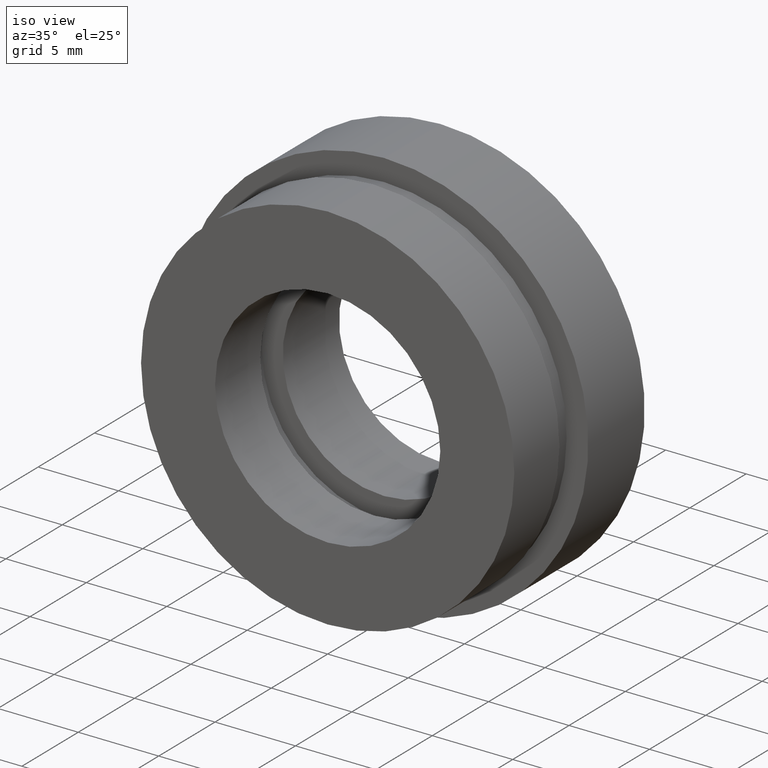
[diagram: clean part render]
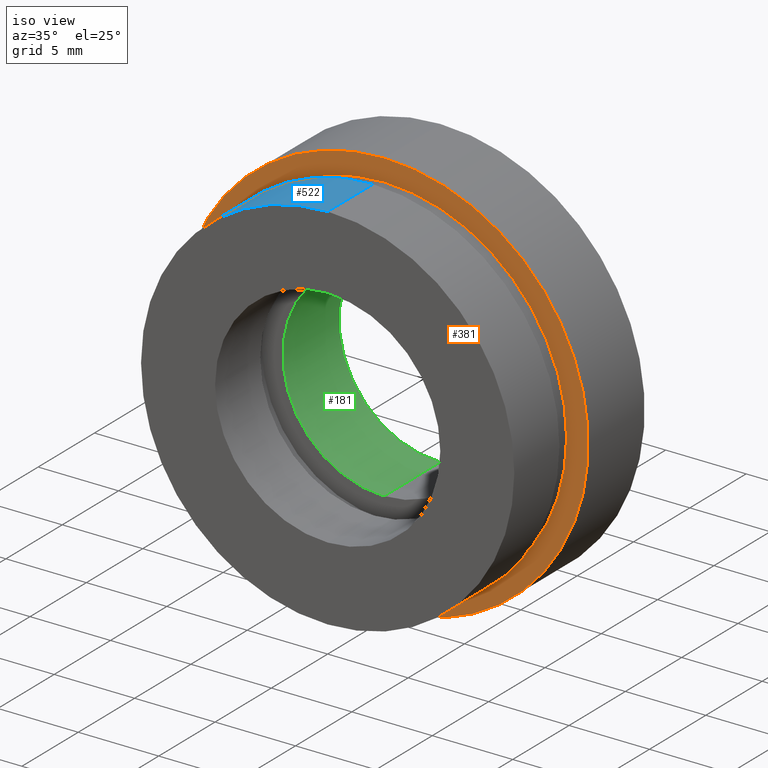
[diagram: same view with three faces highlighted in distinct colors, each labeled with its STEP entity id]
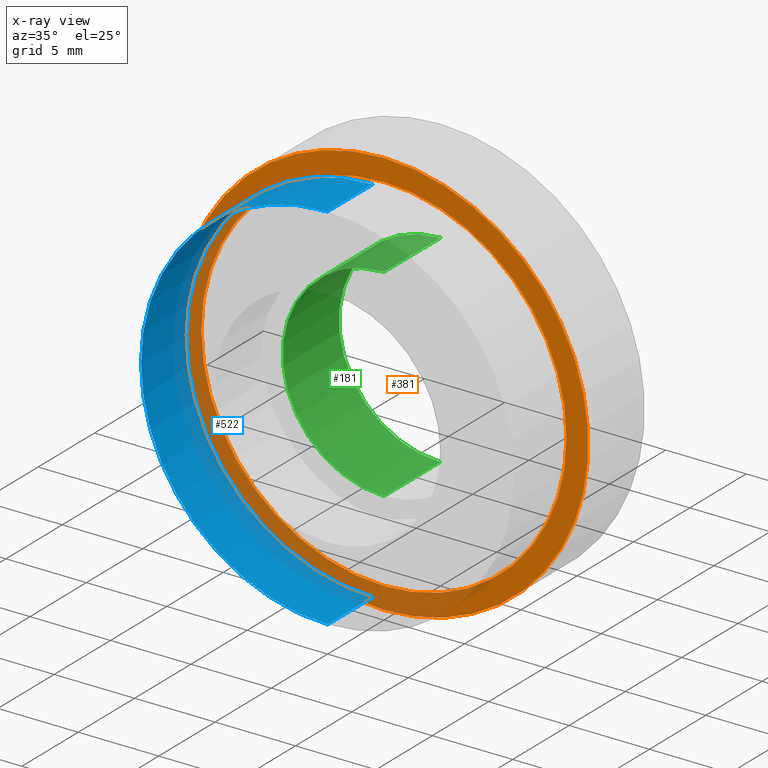
[diagram: x-ray of the same camera — body ghosted, the three highlighted faces saturated]
A machine part, iso view with three faces highlighted in distinct colors.
The next image is the same camera in x-ray (body ghosted, the three faces saturated) — at least one of them is partly hidden behind the body in this view.
Their STEP definitions:

[orange] entity #381 — the highlighted planar face has unit normal (-0, 1, 0).
#21 = CIRCLE ( 'NONE', #583, 11.35000000000000000 ) ;
#22 = CARTESIAN_POINT ( 'NONE',  ( 0.0000000000000000000, 5.000000000000000900, 0.0000000000000000000 ) ) ;
#70 = DIRECTION ( 'NONE',  ( 0.0000000000000000000, 0.0000000000000000000, 1.000000000000000000 ) ) ;
#108 = AXIS2_PLACEMENT_3D ( 'NONE', #363, #369, #380 ) ;
#109 = DIRECTION ( 'NONE',  ( -0.0000000000000000000, 1.000000000000000000, 0.0000000000000000000 ) ) ;
#120 = AXIS2_PLACEMENT_3D ( 'NONE', #22, #624, #166 ) ;
#124 = AXIS2_PLACEMENT_3D ( 'NONE', #150, #152, #153 ) ;
#147 = EDGE_LOOP ( 'NONE', ( #351, #525 ) ) ;
#150 = CARTESIAN_POINT ( 'NONE',  ( 0.0000000000000000000, 5.000000000000000900, 0.0000000000000000000 ) ) ;
#152 = DIRECTION ( 'NONE',  ( -0.0000000000000000000, 1.000000000000000000, -0.0000000000000000000 ) ) ;
#153 = DIRECTION ( 'NONE',  ( 0.0000000000000000000, 0.0000000000000000000, 1.000000000000000000 ) ) ;
#166 = DIRECTION ( 'NONE',  ( 0.0000000000000000000, 0.0000000000000000000, 1.000000000000000000 ) ) ;
#176 = AXIS2_PLACEMENT_3D ( 'NONE', #204, #109, #70 ) ;
#177 = VERTEX_POINT ( 'NONE', #620 ) ;
#189 = PLANE ( 'NONE',  #176 ) ;
#193 = CIRCLE ( 'NONE', #120, 12.70000000000000100 ) ;
#194 = CIRCLE ( 'NONE', #124, 12.70000000000000100 ) ;
#204 = CARTESIAN_POINT ( 'NONE',  ( 12.70000000000000100, 5.000000000000000900, 0.0000000000000000000 ) ) ;
#229 = DIRECTION ( 'NONE',  ( 0.0000000000000000000, 0.0000000000000000000, 1.000000000000000000 ) ) ;
#233 = CARTESIAN_POINT ( 'NONE',  ( 0.0000000000000000000, 5.000000000000000900, 0.0000000000000000000 ) ) ;
#286 = VERTEX_POINT ( 'NONE', #515 ) ;
#334 = DIRECTION ( 'NONE',  ( -0.0000000000000000000, 1.000000000000000000, -0.0000000000000000000 ) ) ;
#351 = ORIENTED_EDGE ( 'NONE', *, *, #439, .F. ) ;
#361 = ORIENTED_EDGE ( 'NONE', *, *, #459, .T. ) ;
#363 = CARTESIAN_POINT ( 'NONE',  ( 0.0000000000000000000, 5.000000000000000900, 0.0000000000000000000 ) ) ;
#369 = DIRECTION ( 'NONE',  ( -0.0000000000000000000, 1.000000000000000000, -0.0000000000000000000 ) ) ;
#380 = DIRECTION ( 'NONE',  ( 0.0000000000000000000, 0.0000000000000000000, 1.000000000000000000 ) ) ;
#381 = ADVANCED_FACE ( 'NONE', ( #420, #566 ), #189, .F. ) ;
#399 = VERTEX_POINT ( 'NONE', #404 ) ;
#404 = CARTESIAN_POINT ( 'NONE',  ( 1.555301434917138600E-015, 5.000000000000000900, -12.70000000000000100 ) ) ;
#420 = FACE_OUTER_BOUND ( 'NONE', #147, .T. ) ;
#439 = EDGE_CURVE ( 'NONE', #177, #399, #193, .T. ) ;
#454 = EDGE_CURVE ( 'NONE', #399, #177, #194, .T. ) ;
#459 = EDGE_CURVE ( 'NONE', #286, #546, #554, .T. ) ;
#462 = EDGE_LOOP ( 'NONE', ( #512, #361 ) ) ;
#512 = ORIENTED_EDGE ( 'NONE', *, *, #574, .T. ) ;
#515 = CARTESIAN_POINT ( 'NONE',  ( 1.389974117032245900E-015, 5.000000000000000900, -11.35000000000000000 ) ) ;
#525 = ORIENTED_EDGE ( 'NONE', *, *, #454, .F. ) ;
#546 = VERTEX_POINT ( 'NONE', #590 ) ;
#554 = CIRCLE ( 'NONE', #108, 11.35000000000000000 ) ;
#566 = FACE_BOUND ( 'NONE', #462, .T. ) ;
#574 = EDGE_CURVE ( 'NONE', #546, #286, #21, .T. ) ;
#583 = AXIS2_PLACEMENT_3D ( 'NONE', #233, #334, #229 ) ;
#590 = CARTESIAN_POINT ( 'NONE',  ( 0.0000000000000000000, 5.000000000000000900, 11.35000000000000000 ) ) ;
#620 = CARTESIAN_POINT ( 'NONE',  ( 0.0000000000000000000, 5.000000000000000900, 12.70000000000000100 ) ) ;
#624 = DIRECTION ( 'NONE',  ( -0.0000000000000000000, 1.000000000000000000, -0.0000000000000000000 ) ) ;

[blue] entity #522 — the highlighted cylindrical surface (partial cylindrical patch) has radius 11.6 mm, axis along (-0, 1, -0).
#4 = AXIS2_PLACEMENT_3D ( 'NONE', #496, #594, #503 ) ;
#11 = CARTESIAN_POINT ( 'NONE',  ( 0.0000000000000000000, 4.000000000000000000, 0.0000000000000000000 ) ) ;
#24 = DIRECTION ( 'NONE',  ( -0.0000000000000000000, 1.000000000000000000, -0.0000000000000000000 ) ) ;
#41 = FACE_OUTER_BOUND ( 'NONE', #359, .T. ) ;
#43 = CIRCLE ( 'NONE', #111, 11.60000000000000000 ) ;
#111 = AXIS2_PLACEMENT_3D ( 'NONE', #215, #218, #228 ) ;
#136 = AXIS2_PLACEMENT_3D ( 'NONE', #11, #24, #269 ) ;
#146 = VERTEX_POINT ( 'NONE', #534 ) ;
#172 = VERTEX_POINT ( 'NONE', #294 ) ;
#207 = CYLINDRICAL_SURFACE ( 'NONE', #4, 11.60000000000000000 ) ;
#215 = CARTESIAN_POINT ( 'NONE',  ( 0.0000000000000000000, 0.0000000000000000000, 0.0000000000000000000 ) ) ;
#218 = DIRECTION ( 'NONE',  ( -0.0000000000000000000, 1.000000000000000000, -0.0000000000000000000 ) ) ;
#221 = CIRCLE ( 'NONE', #136, 11.60000000000000000 ) ;
#228 = DIRECTION ( 'NONE',  ( 0.0000000000000000000, 0.0000000000000000000, 1.000000000000000000 ) ) ;
#237 = CARTESIAN_POINT ( 'NONE',  ( 1.420590287010929500E-015, 4.000000000000000000, -11.60000000000000000 ) ) ;
#266 = ORIENTED_EDGE ( 'NONE', *, *, #468, .T. ) ;
#269 = DIRECTION ( 'NONE',  ( 0.0000000000000000000, 0.0000000000000000000, 1.000000000000000000 ) ) ;
#278 = ORIENTED_EDGE ( 'NONE', *, *, #388, .T. ) ;
#294 = CARTESIAN_POINT ( 'NONE',  ( 1.420590287010929500E-015, 0.0000000000000000000, -11.60000000000000000 ) ) ;
#310 = CARTESIAN_POINT ( 'NONE',  ( 0.0000000000000000000, 4.000000000000000000, 11.60000000000000000 ) ) ;
#317 = CARTESIAN_POINT ( 'NONE',  ( 0.0000000000000000000, 13.74468085106383300, 11.60000000000000000 ) ) ;
#319 = DIRECTION ( 'NONE',  ( -0.0000000000000000000, 1.000000000000000000, -0.0000000000000000000 ) ) ;
#320 = DIRECTION ( 'NONE',  ( -0.0000000000000000000, 1.000000000000000000, -0.0000000000000000000 ) ) ;
#327 = CARTESIAN_POINT ( 'NONE',  ( 1.420590287010929500E-015, 13.74468085106383300, -11.60000000000000000 ) ) ;
#359 = EDGE_LOOP ( 'NONE', ( #595, #266, #278, #524 ) ) ;
#360 = LINE ( 'NONE', #317, #485 ) ;
#388 = EDGE_CURVE ( 'NONE', #146, #520, #360, .T. ) ;
#428 = EDGE_CURVE ( 'NONE', #438, #520, #221, .T. ) ;
#438 = VERTEX_POINT ( 'NONE', #237 ) ;
#468 = EDGE_CURVE ( 'NONE', #172, #146, #43, .T. ) ;
#485 = VECTOR ( 'NONE', #319, 1000.000000000000000 ) ;
#486 = VECTOR ( 'NONE', #320, 1000.000000000000000 ) ;
#496 = CARTESIAN_POINT ( 'NONE',  ( 0.0000000000000000000, 13.74468085106383300, 0.0000000000000000000 ) ) ;
#503 = DIRECTION ( 'NONE',  ( 0.0000000000000000000, 0.0000000000000000000, 1.000000000000000000 ) ) ;
#520 = VERTEX_POINT ( 'NONE', #310 ) ;
#522 = ADVANCED_FACE ( 'NONE', ( #41 ), #207, .T. ) ;
#524 = ORIENTED_EDGE ( 'NONE', *, *, #428, .F. ) ;
#534 = CARTESIAN_POINT ( 'NONE',  ( 0.0000000000000000000, 0.0000000000000000000, 11.60000000000000000 ) ) ;
#594 = DIRECTION ( 'NONE',  ( -0.0000000000000000000, 1.000000000000000000, -0.0000000000000000000 ) ) ;
#595 = ORIENTED_EDGE ( 'NONE', *, *, #598, .F. ) ;
#598 = EDGE_CURVE ( 'NONE', #172, #438, #614, .T. ) ;
#614 = LINE ( 'NONE', #327, #486 ) ;

[green] entity #181 — the highlighted cylindrical surface (partial cylindrical patch) has radius 6.295 mm, axis along (-0, 1, -0).
#50 = LINE ( 'NONE', #131, #64 ) ;
#64 = VECTOR ( 'NONE', #282, 1000.000000000000000 ) ;
#74 = ORIENTED_EDGE ( 'NONE', *, *, #618, .T. ) ;
#81 = DIRECTION ( 'NONE',  ( 0.0000000000000000000, 0.0000000000000000000, 1.000000000000000000 ) ) ;
#86 = LINE ( 'NONE', #370, #364 ) ;
#91 = DIRECTION ( 'NONE',  ( -0.0000000000000000000, 1.000000000000000000, -0.0000000000000000000 ) ) ;
#95 = FACE_OUTER_BOUND ( 'NONE', #344, .T. ) ;
#100 = AXIS2_PLACEMENT_3D ( 'NONE', #113, #115, #125 ) ;
#113 = CARTESIAN_POINT ( 'NONE',  ( 0.0000000000000000000, 10.00000000000000000, 0.0000000000000000000 ) ) ;
#114 = ORIENTED_EDGE ( 'NONE', *, *, #449, .F. ) ;
#115 = DIRECTION ( 'NONE',  ( -0.0000000000000000000, 1.000000000000000000, -0.0000000000000000000 ) ) ;
#116 = AXIS2_PLACEMENT_3D ( 'NONE', #191, #226, #203 ) ;
#125 = DIRECTION ( 'NONE',  ( 0.0000000000000000000, 0.0000000000000000000, 1.000000000000000000 ) ) ;
#127 = VERTEX_POINT ( 'NONE', #440 ) ;
#131 = CARTESIAN_POINT ( 'NONE',  ( 0.0000000000000000000, 13.74468085106383300, 6.295000000000001700 ) ) ;
#138 = VERTEX_POINT ( 'NONE', #246 ) ;
#169 = DIRECTION ( 'NONE',  ( -0.0000000000000000000, 1.000000000000000000, -0.0000000000000000000 ) ) ;
#181 = ADVANCED_FACE ( 'NONE', ( #95 ), #427, .F. ) ;
#191 = CARTESIAN_POINT ( 'NONE',  ( 0.0000000000000000000, 4.999999999999999100, 0.0000000000000000000 ) ) ;
#202 = VERTEX_POINT ( 'NONE', #577 ) ;
#203 = DIRECTION ( 'NONE',  ( 0.0000000000000000000, 0.0000000000000000000, 1.000000000000000000 ) ) ;
#226 = DIRECTION ( 'NONE',  ( -0.0000000000000000000, 1.000000000000000000, -0.0000000000000000000 ) ) ;
#246 = CARTESIAN_POINT ( 'NONE',  ( 0.0000000000000000000, 10.00000000000000000, 6.295000000000001700 ) ) ;
#282 = DIRECTION ( 'NONE',  ( -0.0000000000000000000, 1.000000000000000000, -0.0000000000000000000 ) ) ;
#288 = AXIS2_PLACEMENT_3D ( 'NONE', #531, #91, #81 ) ;
#322 = CIRCLE ( 'NONE', #116, 6.295000000000001700 ) ;
#331 = CIRCLE ( 'NONE', #100, 6.295000000000001700 ) ;
#344 = EDGE_LOOP ( 'NONE', ( #415, #74, #622, #114 ) ) ;
#364 = VECTOR ( 'NONE', #169, 1000.000000000000000 ) ;
#370 = CARTESIAN_POINT ( 'NONE',  ( 7.709151600632590500E-016, 13.74468085106383300, -6.295000000000001700 ) ) ;
#415 = ORIENTED_EDGE ( 'NONE', *, *, #442, .F. ) ;
#427 = CYLINDRICAL_SURFACE ( 'NONE', #288, 6.295000000000001700 ) ;
#440 = CARTESIAN_POINT ( 'NONE',  ( 7.709151600632590500E-016, 4.999999999999999100, -6.295000000000001700 ) ) ;
#442 = EDGE_CURVE ( 'NONE', #127, #533, #322, .T. ) ;
#449 = EDGE_CURVE ( 'NONE', #533, #138, #50, .T. ) ;
#466 = EDGE_CURVE ( 'NONE', #202, #138, #331, .T. ) ;
#531 = CARTESIAN_POINT ( 'NONE',  ( 0.0000000000000000000, 13.74468085106383300, 0.0000000000000000000 ) ) ;
#533 = VERTEX_POINT ( 'NONE', #562 ) ;
#562 = CARTESIAN_POINT ( 'NONE',  ( 0.0000000000000000000, 4.999999999999999100, 6.295000000000001700 ) ) ;
#577 = CARTESIAN_POINT ( 'NONE',  ( 7.709151600632590500E-016, 10.00000000000000000, -6.295000000000001700 ) ) ;
#618 = EDGE_CURVE ( 'NONE', #127, #202, #86, .T. ) ;
#622 = ORIENTED_EDGE ( 'NONE', *, *, #466, .T. ) ;